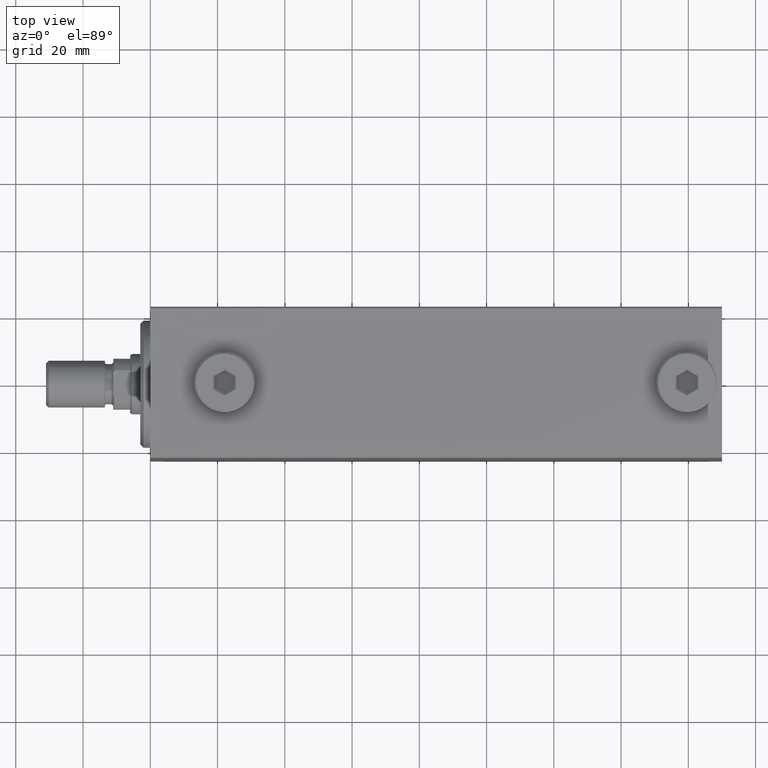
[diagram: clean part render]
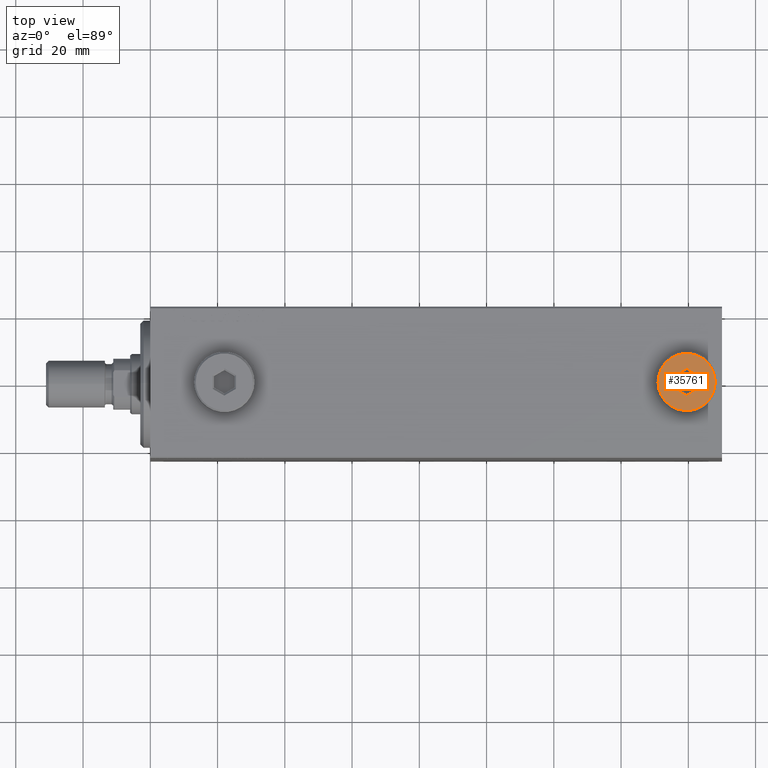
[diagram: same view with one face highlighted and labeled with its STEP entity id]
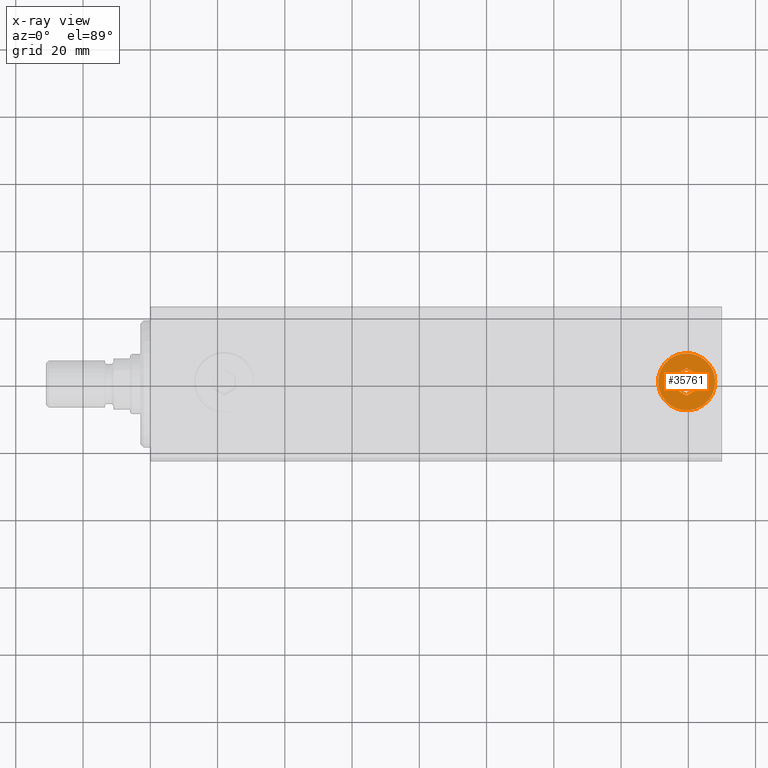
[diagram: x-ray of the same camera — body ghosted, the highlighted face saturated]
A machine part, top view. The second image highlights one B-rep face of the part: STEP entity #35761.
The next image is the same camera in x-ray: the body ghosted, the highlighted face saturated — about 0% of this face is hidden behind the body in this view.
In plain terms, the highlighted planar face has unit normal (0, 0, 1).
Its self-contained STEP definition (entity closure, byte-faithful):
#262 = ORIENTED_EDGE ( 'NONE', *, *, #20344, .T. ) ;
#1177 = EDGE_CURVE ( 'NONE', #10311, #37816, #14586, .T. ) ;
#1372 = VECTOR ( 'NONE', #34172, 1000.000000000000114 ) ;
#1409 = CARTESIAN_POINT ( 'NONE',  ( 0.000000000000000000, 0.000000000000000000, 5.000000000000000000 ) ) ;
#1911 = CARTESIAN_POINT ( 'NONE',  ( -0.2500000000000027756, 3.897114317029978459, 5.000000000000000000 ) ) ;
#2333 = CARTESIAN_POINT ( 'NONE',  ( 1.590596867181068292E-15, 4.041451884327386779, 5.000000000000000000 ) ) ;
#2360 = VECTOR ( 'NONE', #11622, 1000.000000000000000 ) ;
#2764 = LINE ( 'NONE', #38358, #1372 ) ;
#3461 = VECTOR ( 'NONE', #37708, 1000.000000000000000 ) ;
#3660 = CARTESIAN_POINT ( 'NONE',  ( 0.2500000000000027756, -3.897114317029979347, 5.000000000000000000 ) ) ;
#4206 = EDGE_LOOP ( 'NONE', ( #18398, #38001, #262, #32230, #7400, #38714 ) ) ;
#5124 = DIRECTION ( 'NONE',  ( 1.000000000000000000, 0.000000000000000000, 0.000000000000000000 ) ) ;
#5636 = EDGE_CURVE ( 'NONE', #16431, #11069, #41668, .T. ) ;
#5750 = CARTESIAN_POINT ( 'NONE',  ( 3.500000000000006661, 2.020725942163694722, 5.000000000000000000 ) ) ;
#5839 = CARTESIAN_POINT ( 'NONE',  ( -1.006139216460143630E-15, -4.041451884327387667, 5.000000000000000000 ) ) ;
#6038 = DIRECTION ( 'NONE',  ( 0.000000000000000000, 1.000000000000000000, 0.000000000000000000 ) ) ;
#6063 = VERTEX_POINT ( 'NONE', #14785 ) ;
#6496 = EDGE_CURVE ( 'NONE', #34800, #6063, #9765, .T. ) ;
#7400 = ORIENTED_EDGE ( 'NONE', *, *, #1177, .T. ) ;
#8298 = CARTESIAN_POINT ( 'NONE',  ( 0.000000000000000000, 0.000000000000000000, 5.000000000000000000 ) ) ;
#8820 = CARTESIAN_POINT ( 'NONE',  ( 3.250000000000003109, 2.165063509461103042, 5.000000000000000000 ) ) ;
#8852 = DIRECTION ( 'NONE',  ( 0.000000000000000000, 0.000000000000000000, 1.000000000000000000 ) ) ;
#9765 = LINE ( 'NONE', #45829, #41700 ) ;
#9866 = EDGE_LOOP ( 'NONE', ( #34364, #35185 ) ) ;
#10311 = VERTEX_POINT ( 'NONE', #35492 ) ;
#11069 = VERTEX_POINT ( 'NONE', #40442 ) ;
#11622 = DIRECTION ( 'NONE',  ( 0.8660254037844387076, -0.4999999999999998890, 0.000000000000000000 ) ) ;
#11698 = PLANE ( 'NONE',  #32415 ) ;
#11792 = DIRECTION ( 'NONE',  ( 0.000000000000000000, 0.000000000000000000, 1.000000000000000000 ) ) ;
#12392 = CARTESIAN_POINT ( 'NONE',  ( 0.000000000000000000, 0.000000000000000000, 5.000000000000000000 ) ) ;
#13600 = VECTOR ( 'NONE', #21352, 1000.000000000000000 ) ;
#14586 = LINE ( 'NONE', #3660, #40925 ) ;
#14785 = CARTESIAN_POINT ( 'NONE',  ( -3.500000000000006661, 2.020725942163692945, 5.000000000000000000 ) ) ;
#15408 = FACE_BOUND ( 'NONE', #4206, .T. ) ;
#16431 = VERTEX_POINT ( 'NONE', #23456 ) ;
#17169 = VERTEX_POINT ( 'NONE', #2333 ) ;
#18307 = DIRECTION ( 'NONE',  ( 1.000000000000000000, 0.000000000000000000, 0.000000000000000000 ) ) ;
#18398 = ORIENTED_EDGE ( 'NONE', *, *, #6496, .T. ) ;
#20344 = EDGE_CURVE ( 'NONE', #17169, #43015, #43505, .T. ) ;
#20601 = EDGE_CURVE ( 'NONE', #11069, #16431, #39511, .T. ) ;
#21352 = DIRECTION ( 'NONE',  ( 0.000000000000000000, -1.000000000000000000, 0.000000000000000000 ) ) ;
#22636 = FACE_OUTER_BOUND ( 'NONE', #9866, .T. ) ;
#23128 = EDGE_CURVE ( 'NONE', #43015, #10311, #39263, .T. ) ;
#23456 = CARTESIAN_POINT ( 'NONE',  ( 8.500000000000010658, 1.071565949253934716E-15, 5.000000000000000000 ) ) ;
#24566 = CARTESIAN_POINT ( 'NONE',  ( -3.500000000000006661, -2.020725942163694278, 5.000000000000000000 ) ) ;
#32230 = ORIENTED_EDGE ( 'NONE', *, *, #23128, .T. ) ;
#32415 = AXIS2_PLACEMENT_3D ( 'NONE', #12392, #40792, #43810 ) ;
#34172 = DIRECTION ( 'NONE',  ( -0.8660254037844385966, 0.4999999999999999445, 0.000000000000000000 ) ) ;
#34364 = ORIENTED_EDGE ( 'NONE', *, *, #20601, .T. ) ;
#34800 = VERTEX_POINT ( 'NONE', #24566 ) ;
#35185 = ORIENTED_EDGE ( 'NONE', *, *, #5636, .T. ) ;
#35304 = DIRECTION ( 'NONE',  ( -0.8660254037844387076, -0.4999999999999998890, 0.000000000000000000 ) ) ;
#35492 = CARTESIAN_POINT ( 'NONE',  ( 3.500000000000006661, -2.020725942163693833, 5.000000000000000000 ) ) ;
#35761 = ADVANCED_FACE ( 'NONE', ( #15408, #22636 ), #11698, .T. ) ;
#37270 = AXIS2_PLACEMENT_3D ( 'NONE', #8298, #11792, #18307 ) ;
#37708 = DIRECTION ( 'NONE',  ( 0.8660254037844387076, 0.4999999999999998335, 0.000000000000000000 ) ) ;
#37728 = EDGE_CURVE ( 'NONE', #6063, #17169, #44259, .T. ) ;
#37816 = VERTEX_POINT ( 'NONE', #5839 ) ;
#38001 = ORIENTED_EDGE ( 'NONE', *, *, #37728, .T. ) ;
#38358 = CARTESIAN_POINT ( 'NONE',  ( -3.250000000000003109, -2.165063509461102598, 5.000000000000000000 ) ) ;
#38714 = ORIENTED_EDGE ( 'NONE', *, *, #41797, .T. ) ;
#39034 = CARTESIAN_POINT ( 'NONE',  ( 3.500000000000006661, -1.732050807568878303, 5.000000000000000000 ) ) ;
#39263 = LINE ( 'NONE', #39034, #13600 ) ;
#39445 = AXIS2_PLACEMENT_3D ( 'NONE', #1409, #8852, #5124 ) ;
#39511 = CIRCLE ( 'NONE', #37270, 8.500000000000010658 ) ;
#40442 = CARTESIAN_POINT ( 'NONE',  ( -8.500000000000010658, 0.000000000000000000, 5.000000000000000000 ) ) ;
#40792 = DIRECTION ( 'NONE',  ( 0.000000000000000000, 0.000000000000000000, 1.000000000000000000 ) ) ;
#40925 = VECTOR ( 'NONE', #35304, 1000.000000000000000 ) ;
#41668 = CIRCLE ( 'NONE', #39445, 8.500000000000010658 ) ;
#41700 = VECTOR ( 'NONE', #6038, 1000.000000000000000 ) ;
#41797 = EDGE_CURVE ( 'NONE', #37816, #34800, #2764, .T. ) ;
#43015 = VERTEX_POINT ( 'NONE', #5750 ) ;
#43505 = LINE ( 'NONE', #8820, #2360 ) ;
#43810 = DIRECTION ( 'NONE',  ( 1.000000000000000000, 0.000000000000000000, -0.000000000000000000 ) ) ;
#44259 = LINE ( 'NONE', #1911, #3461 ) ;
#45829 = CARTESIAN_POINT ( 'NONE',  ( -3.500000000000006661, 1.732050807568878081, 5.000000000000000000 ) ) ;